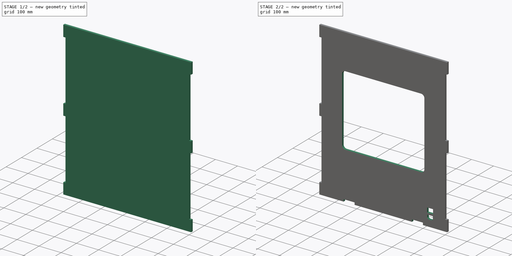
[diagram: build sequence overview — one tinted view per stage of 2, left to right]
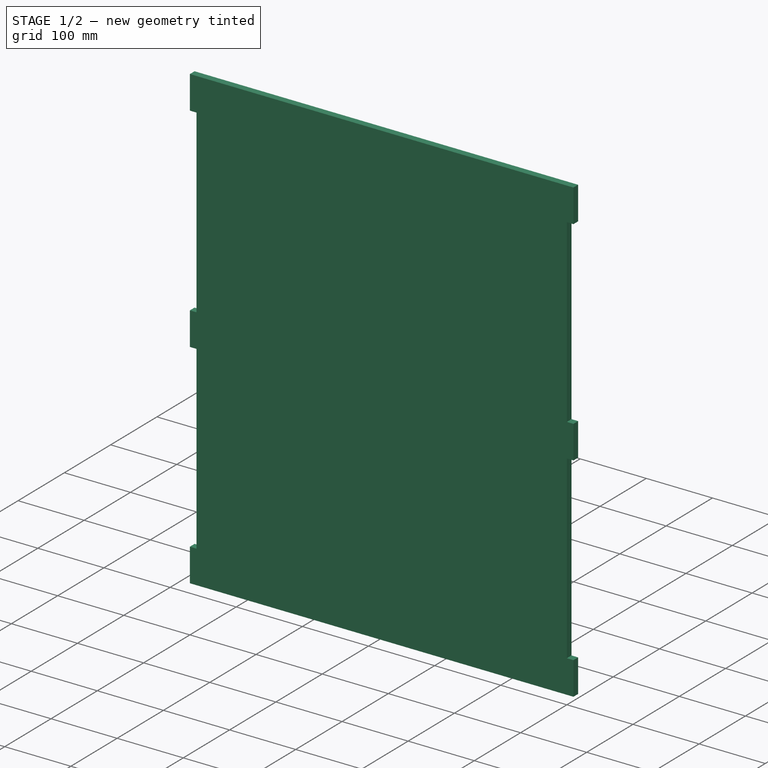
[diagram: stage 1 of 2 — iso view after this stage's code; geometry added in this stage tinted green]
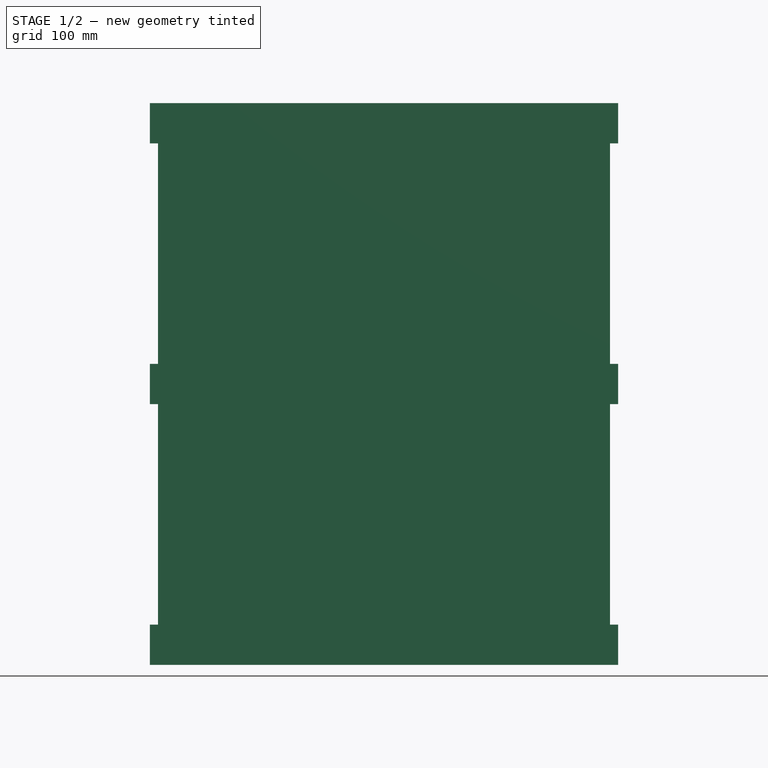
[diagram: stage 1 of 2 — front view after this stage's code; geometry added in this stage tinted green]
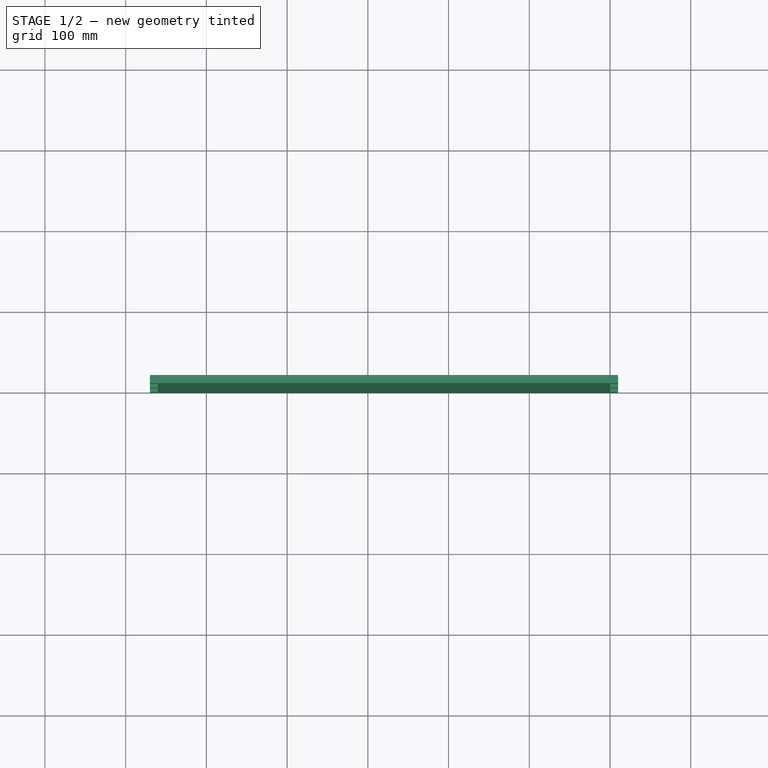
[diagram: stage 1 of 2 — top view after this stage's code; geometry added in this stage tinted green]
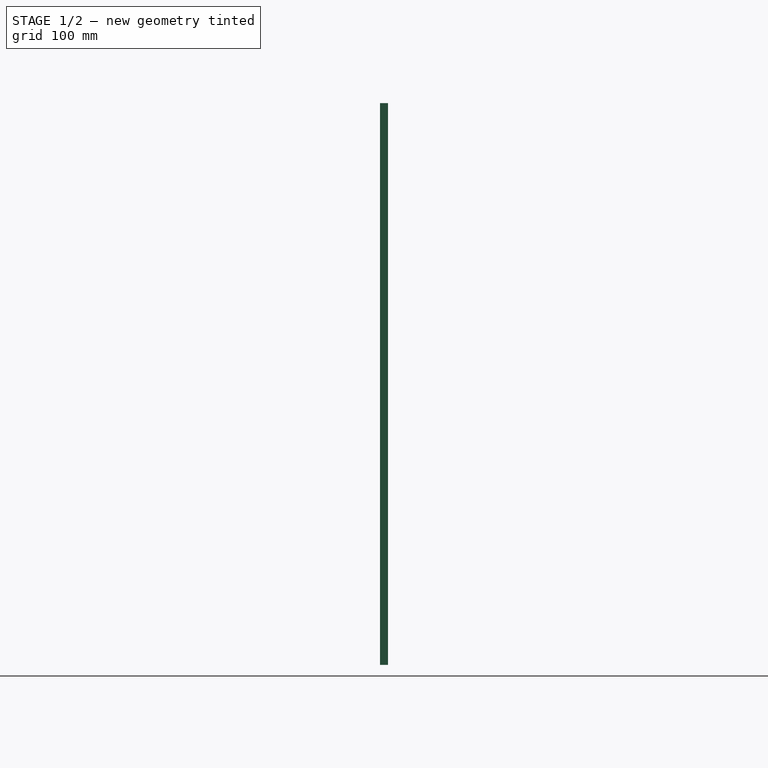
[diagram: stage 1 of 2 — right view after this stage's code; geometry added in this stage tinted green]
FCSTD DOCUMENT  (FreeCAD 0.16R6706 (Git))
Label: panneau_arriere
License: All rights reserved
LicenseURL: http://en.wikipedia.org/wiki/All_rights_reserved
objects: Sketcher::SketchObject×2, PartDesign::Pad×1, PartDesign::Pocket×1
note: 6 computed .brp shape members not serialized (recipe doc carries the construction recipe); baked Part::Feature solids carry a one-line shape summary decoded from their .brp

FEATURE [Sketcher::SketchObject] Sketch
  Placement = pos=(0,0,0) rot=(0,0.707107,0.707107;3.14159rad)
  sketch-geometry (24):
    g0: LineSegment StartX=0 StartY=0 StartZ=0 EndX=560 EndY=0 EndZ=0
    g1: LineSegment StartX=560 StartY=696 StartZ=0 EndX=0 EndY=696 EndZ=0
    g2: LineSegment StartX=560 StartY=696 StartZ=0 EndX=570 EndY=696 EndZ=0
    g3: LineSegment StartX=570 StartY=696 StartZ=0 EndX=570 EndY=646 EndZ=0
    g4: LineSegment StartX=570 StartY=646 StartZ=0 EndX=560 EndY=646 EndZ=0
    g5: LineSegment StartX=560 StartY=373 StartZ=0 EndX=570 EndY=373 EndZ=0
    g6: LineSegment StartX=570 StartY=373 StartZ=0 EndX=570 EndY=323 EndZ=0
    g7: LineSegment StartX=570 StartY=323 StartZ=0 EndX=560 EndY=323 EndZ=0
    g8: LineSegment StartX=560 StartY=50 StartZ=0 EndX=570 EndY=50 EndZ=0
    g9: LineSegment StartX=570 StartY=50 StartZ=0 EndX=570 EndY=0 EndZ=0
    g10: LineSegment StartX=570 StartY=0 StartZ=0 EndX=560 EndY=0 EndZ=0
    g11: LineSegment StartX=560 StartY=646 StartZ=0 EndX=560 EndY=373 EndZ=0
    g12: LineSegment StartX=560 StartY=323 StartZ=0 EndX=560 EndY=50 EndZ=0
    g13: LineSegment StartX=-10 StartY=696 StartZ=0 EndX=0 EndY=696 EndZ=0
    g14: LineSegment StartX=0 StartY=646 StartZ=0 EndX=-10 EndY=646 EndZ=0
    g15: LineSegment StartX=-10 StartY=646 StartZ=0 EndX=-10 EndY=696 EndZ=0
    g16: LineSegment StartX=-10 StartY=373 StartZ=0 EndX=0 EndY=373 EndZ=0
    g17: LineSegment StartX=0 StartY=323 StartZ=0 EndX=-10 EndY=323 EndZ=0
    g18: LineSegment StartX=-10 StartY=323 StartZ=0 EndX=-10 EndY=373 EndZ=0
    g19: LineSegment StartX=-10 StartY=50 StartZ=0 EndX=0 EndY=50 EndZ=0
    g20: LineSegment StartX=0 StartY=0 StartZ=0 EndX=-10 EndY=0 EndZ=0
    g21: LineSegment StartX=-10 StartY=0 StartZ=0 EndX=-10 EndY=50 EndZ=0
    g22: LineSegment StartX=0 StartY=646 StartZ=0 EndX=0 EndY=373 EndZ=0
    g23: LineSegment StartX=0 StartY=323 StartZ=0 EndX=0 EndY=50 EndZ=0
  constraints (71):
    c: Horizontal(g0)
    c: Horizontal(g1)
    c: Coincident(g0,g-1)
    c: Distance(g0) = 560
    c: Coincident(g2,g3)
    c: Coincident(g3,g4)
    c: Horizontal(g2)
    c: Horizontal(g4)
    c: Vertical(g3)
    c: DistanceX(g2,g2) = 10
    c: DistanceY(g3,g3) = 50
    c: Coincident(g1,g2)
    c: Coincident(g5,g6)
    c: Coincident(g6,g7)
    c: Horizontal(g5)
    c: Horizontal(g7)
    c: Vertical(g6)
    c: Coincident(g8,g9)
    c: Coincident(g9,g10)
    c: Horizontal(g8)
    c: Horizontal(g10)
    c: Vertical(g9)
    c: Coincident(g0,g10)
    c: Equal(g10,g8)
    c: Equal(g8,g7)
    c: Equal(g7,g5)
    c: Equal(g5,g4)
    c: Equal(g4,g2)
    c: Equal(g3,g6)
    c: Equal(g6,g9)
    c: Coincident(g11,g4)
    c: Coincident(g11,g5)
    c: Vertical(g11)
    c: Coincident(g12,g7)
    c: Coincident(g12,g8)
    c: Vertical(g12)
    c: Equal(g11,g12)
    c: Coincident(g14,g15)
    c: Coincident(g15,g13)
    c: Horizontal(g13)
    c: Horizontal(g14)
    c: Vertical(g15)
    c: Coincident(g17,g18)
    c: Coincident(g18,g16)
    c: Horizontal(g16)
    c: Horizontal(g17)
    c: Vertical(g18)
    c: Coincident(g20,g21)
    c: Coincident(g21,g19)
    c: Horizontal(g19)
    c: Horizontal(g20)
    c: Vertical(g21)
    c: DistanceY(g-1,g1) = 696
    c: Coincident(g1,g13)
    c: Coincident(g0,g20)
    c: Equal(g13,g14)
    c: Equal(g14,g16)
    c: Equal(g16,g17)
    c: Equal(g17,g19)
    c: Equal(g19,g20)
    c: Equal(g20,g10)
    c: Equal(g21,g18)
    c: Equal(g18,g15)
    c: Equal(g15,g9)
    c: Coincident(g22,g14)
    c: Coincident(g22,g16)
    c: Vertical(g22)
    c: Coincident(g23,g17)
    c: Coincident(g23,g19)
    c: Vertical(g23)
    c: Equal(g22,g23)
FEATURE [PartDesign::Pad] Pad
  Length = 10
  Length2 = 100
  Placement = pos=(0,0,0) rot=(0,0.707107,0.707107;3.14159rad)
  Sketch = -> Sketch
  Type = 0
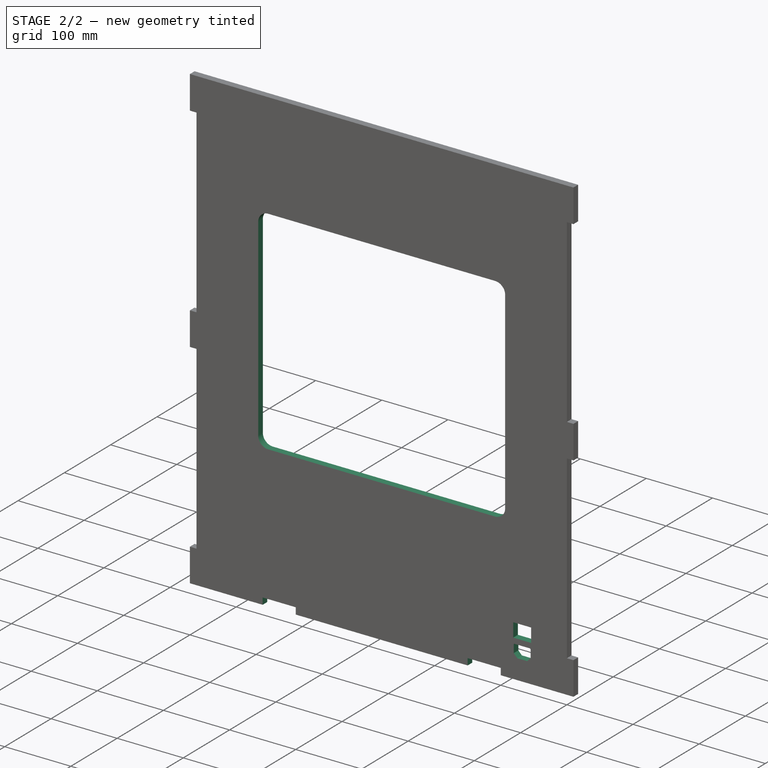
[diagram: stage 2 of 2 — iso view after this stage's code; geometry added in this stage tinted green]
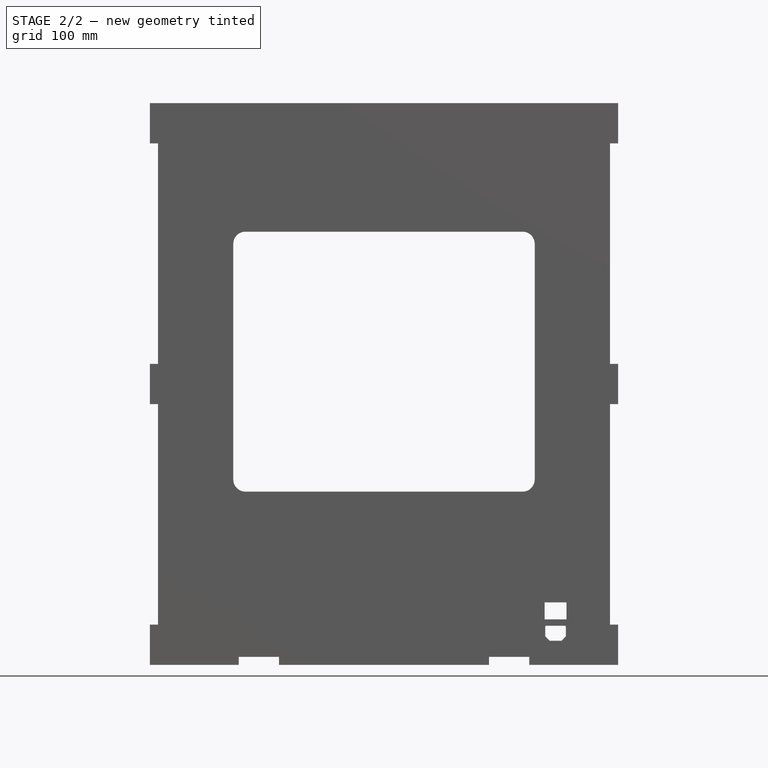
[diagram: stage 2 of 2 — front view after this stage's code; geometry added in this stage tinted green]
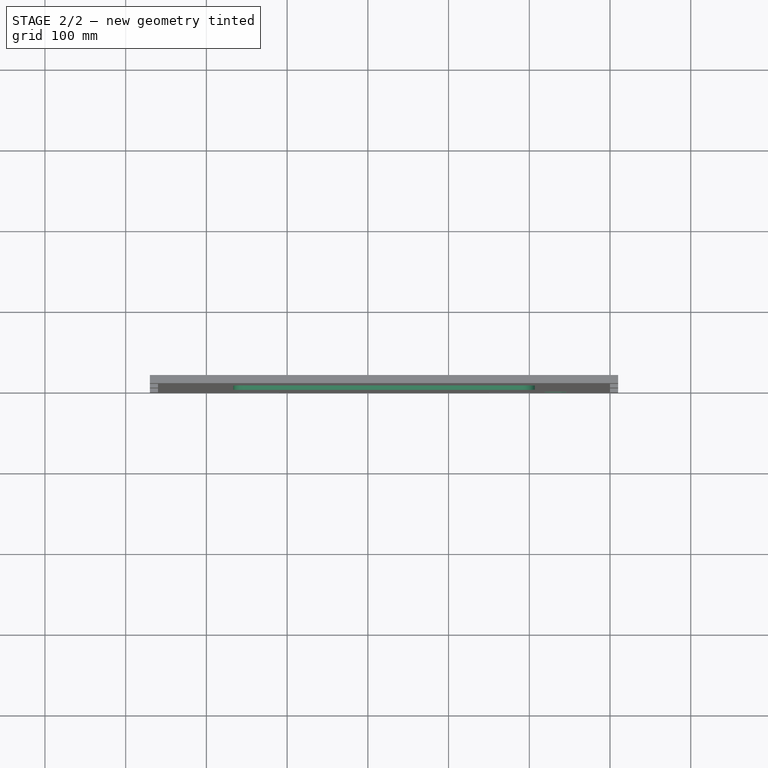
[diagram: stage 2 of 2 — top view after this stage's code; geometry added in this stage tinted green]
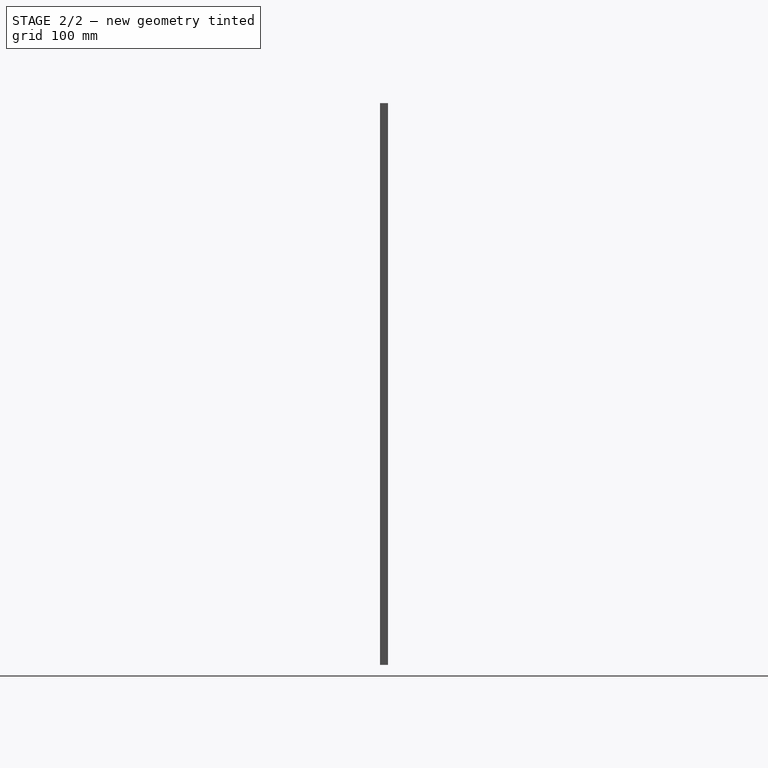
[diagram: stage 2 of 2 — right view after this stage's code; geometry added in this stage tinted green]
FEATURE [Sketcher::SketchObject] Sketch001
  Placement = pos=(0,10,0) rot=(0,0.707107,0.707107;3.14159rad)
  Support = -> Pad [Face26]
  sketch-geometry (31):
    g0: LineSegment StartX=108.335 StartY=536.67 StartZ=0 EndX=451.675 EndY=536.67 EndZ=0
    g1: LineSegment StartX=466.675 StartY=521.67 StartZ=0 EndX=466.675 EndY=229.67 EndZ=0
    g2: LineSegment StartX=451.675 StartY=214.67 StartZ=0 EndX=108.335 EndY=214.67 EndZ=0
    g3: LineSegment StartX=93.335 StartY=229.67 StartZ=0 EndX=93.335 EndY=521.67 EndZ=0
    g4: ArcOfCircle CenterX=108.335 CenterY=521.67 CenterZ=0 NormalX=0 NormalY=0 NormalZ=1 Radius=15 StartAngle=1.5708 EndAngle=3.14159
    g5: ArcOfCircle CenterX=108.335 CenterY=229.67 CenterZ=0 NormalX=0 NormalY=0 NormalZ=1 Radius=15 StartAngle=3.14159 EndAngle=4.71239
    g6: ArcOfCircle CenterX=451.675 CenterY=229.67 CenterZ=0 NormalX=0 NormalY=0 NormalZ=1 Radius=15 StartAngle=4.71239 EndAngle=6.28319
    g7: ArcOfCircle CenterX=451.675 CenterY=521.67 CenterZ=0 NormalX=0 NormalY=0 NormalZ=1 Radius=15 StartAngle=0 EndAngle=1.5708
    g8: LineSegment StartX=60 StartY=30 StartZ=0 EndX=75 EndY=30 EndZ=0
    g9: LineSegment StartX=78.8 StartY=48.5 StartZ=0 EndX=56.2 EndY=48.5 EndZ=0
    g10: LineSegment StartX=80.3 StartY=47 StartZ=0 EndX=80.3 EndY=35.5 EndZ=0
    g11: LineSegment StartX=80.3 StartY=35.5 StartZ=0 EndX=75 EndY=30 EndZ=0
    g12: LineSegment StartX=54.7 StartY=47 StartZ=0 EndX=54.7 EndY=35.5 EndZ=0
    g13: LineSegment StartX=54.7 StartY=35.5 StartZ=0 EndX=60 EndY=30 EndZ=0
    g14: ArcOfCircle CenterX=56.2 CenterY=47 CenterZ=0 NormalX=0 NormalY=0 NormalZ=1 Radius=1.5 StartAngle=1.5708 EndAngle=3.14159
    g15: ArcOfCircle CenterX=78.8 CenterY=47 CenterZ=0 NormalX=0 NormalY=0 NormalZ=1 Radius=1.5 StartAngle=0 EndAngle=1.5708
    g16: LineSegment StartX=54 StartY=77.5 StartZ=0 EndX=81 EndY=77.5 EndZ=0
    g17: LineSegment StartX=81 StartY=77.5 StartZ=0 EndX=81 EndY=56.5 EndZ=0
    g18: LineSegment StartX=81 StartY=56.5 StartZ=0 EndX=54 EndY=56.5 EndZ=0
    g19: LineSegment StartX=54 StartY=56.5 StartZ=0 EndX=54 EndY=77.5 EndZ=0
    g20: GeomPoint [constr] X=67.5 Y=48.5 Z=0
    g21: GeomPoint [constr] X=67.5 Y=56.5 Z=0
    g22: LineSegment [constr] StartX=67.5 StartY=56.5 StartZ=0 EndX=67.5 EndY=48.5 EndZ=0
    g23: LineSegment StartX=100 StartY=0 StartZ=0 EndX=150 EndY=0 EndZ=0
    g24: LineSegment StartX=150 StartY=0 StartZ=0 EndX=150 EndY=10 EndZ=0
    g25: LineSegment StartX=150 StartY=10 StartZ=0 EndX=100 EndY=10 EndZ=0
    g26: LineSegment StartX=100 StartY=10 StartZ=0 EndX=100 EndY=0 EndZ=0
    g27: LineSegment StartX=410 StartY=0 StartZ=0 EndX=460 EndY=0 EndZ=0
    g28: LineSegment StartX=460 StartY=0 StartZ=0 EndX=460 EndY=10 EndZ=0
    g29: LineSegment StartX=460 StartY=10 StartZ=0 EndX=410 EndY=10 EndZ=0
    g30: LineSegment StartX=410 StartY=10 StartZ=0 EndX=410 EndY=0 EndZ=0
  constraints (88):
    c: Horizontal(g0)
    c: Horizontal(g2)
    c: Vertical(g1)
    c: Vertical(g3)
    c: Tangent(g0,g4) = 1.5708
    c: Tangent(g3,g4) = 1.5708
    c: Tangent(g2,g5) = 1.5708
    c: Tangent(g3,g5) = 1.5708
    c: Tangent(g1,g6) = 1.5708
    c: Tangent(g2,g6) = 1.5708
    c: Tangent(g0,g7) = 1.5708
    c: Tangent(g1,g7) = 1.5708
    c: Equal(g5,g6)
    c: Equal(g6,g7)
    c: Equal(g7,g4)
    c: DistanceY(g2,g0) = 322
    c: DistanceX(g3,g1) = 373.34
    c: DistanceY(g-1,g2) = 214.67
    c: Radius(g4) = 15
    c: Horizontal(g8)
    c: Horizontal(g9)
    c: DistanceX(g8,g8) = 15
    c: Vertical(g10)
    c: Coincident(g10,g11)
    c: Coincident(g11,g8)
    c: Vertical(g12)
    c: Coincident(g12,g13)
    c: Coincident(g13,g8)
    c: Equal(g12,g10)
    c: Equal(g13,g11)
    c: Tangent(g9,g14) = -1.5708
    c: Tangent(g12,g14) = -1.5708
    c: Tangent(g9,g15) = -1.5708
    c: Tangent(g10,g15) = 1.5708
    c: DistanceY(g12,g9) = 13
    c: DistanceX(g12,g10) = 25.6
    c: Radius(g14) = 1.5
    c: Equal(g14,g15)
    c: DistanceY(g8,g9) = 18.5
    c: Coincident(g16,g17)
    c: Coincident(g17,g18)
    c: Coincident(g18,g19)
    c: Coincident(g19,g16)
    c: Horizontal(g16)
    c: Horizontal(g18)
    c: Vertical(g17)
    c: Vertical(g19)
    c: DistanceY(g17,g17) = 21
    c: PointOnObject(g20,g9)
    c: PointOnObject(g21,g18)
    c: DistanceX(g16,g16) = 27
    c: Coincident(g22,g21)
    c: Coincident(g22,g20)
    c: Vertical(g22)
    c: DistanceY(g22,g22) = 8
    c: Symmetric(g9,g9,g20)
    c: Symmetric(g18,g18,g21)
    c: DistanceY(g-1,g8) = 30
    c: DistanceX(g-1,g8) = 60
    c: Coincident(g23,g24)
    c: Coincident(g24,g25)
    c: Coincident(g25,g26)
    c: Coincident(g26,g23)
    c: Horizontal(g23)
    c: Horizontal(g25)
    c: Vertical(g24)
    c: Vertical(g26)
    c: Coincident(g27,g28)
    c: Coincident(g28,g29)
    c: Coincident(g29,g30)
    c: Coincident(g30,g27)
    c: Horizontal(g27)
    c: Horizontal(g29)
    c: Vertical(g28)
    c: Vertical(g30)
    c: Equal(g23,g27)
    c: Equal(g27,g29)
    c: Equal(g29,g25)
    c: Equal(g24,g26)
    c: Equal(g26,g30)
    c: Equal(g30,g28)
    c: Distance(g27) = 50
    c: Distance(g28) = 10
    c: PointOnObject(g23,g-1)
    c: PointOnObject(g27,g-1)
    c: DistanceX(g-1,g23) = 100
    c: DistanceX(g23,g27) = 260
    c: DistanceX(g-1,g3) = 93.335
FEATURE [PartDesign::Pocket] Pocket
  Length = 5
  Placement = pos=(0,0,0) rot=(0,0.707107,0.707107;3.14159rad)
  Sketch = -> Sketch001
  Type = 1
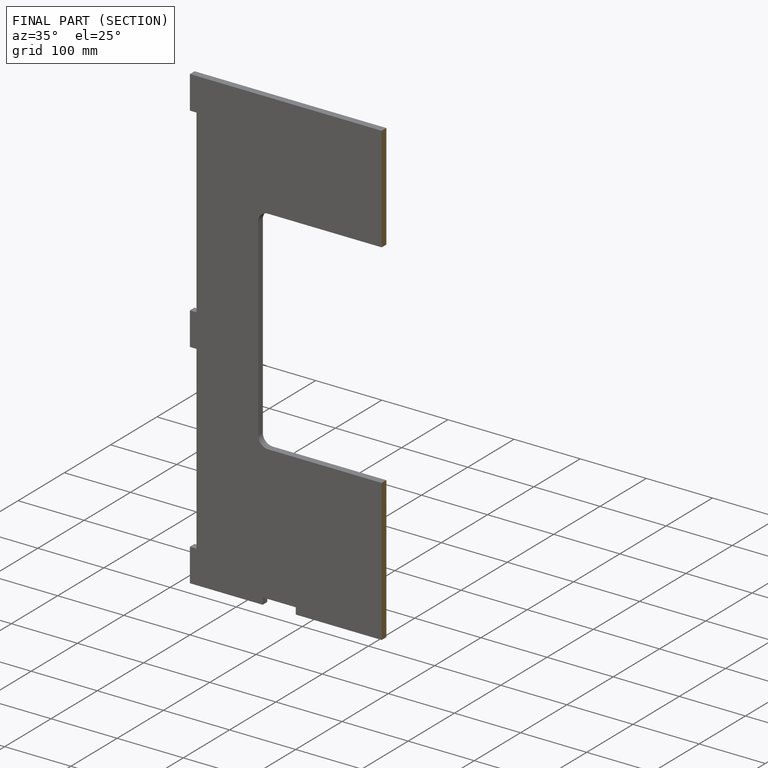
[diagram: finished part — half-section view (interior)]
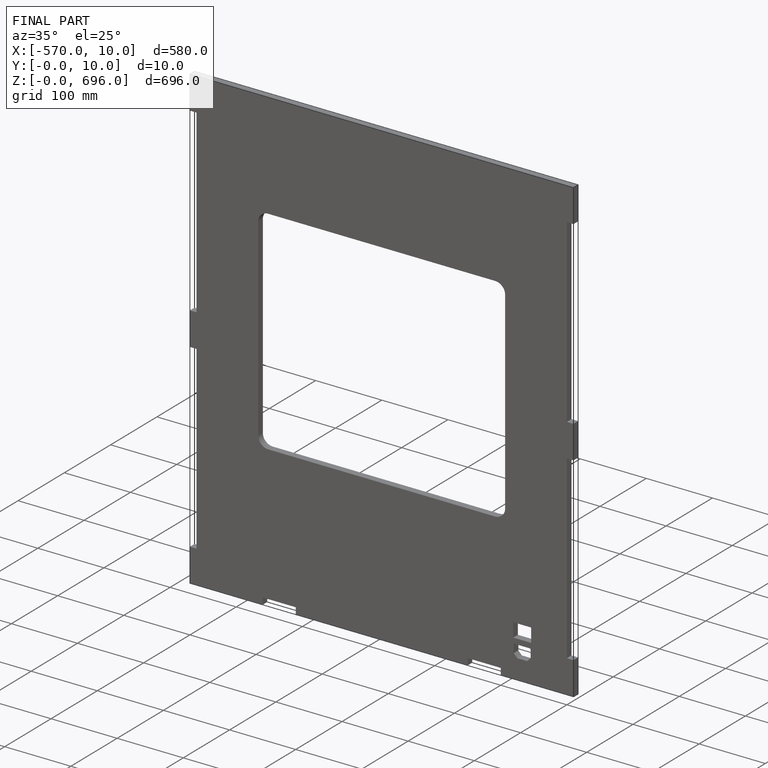
[diagram: finished part — iso view with bounding-box wireframe]
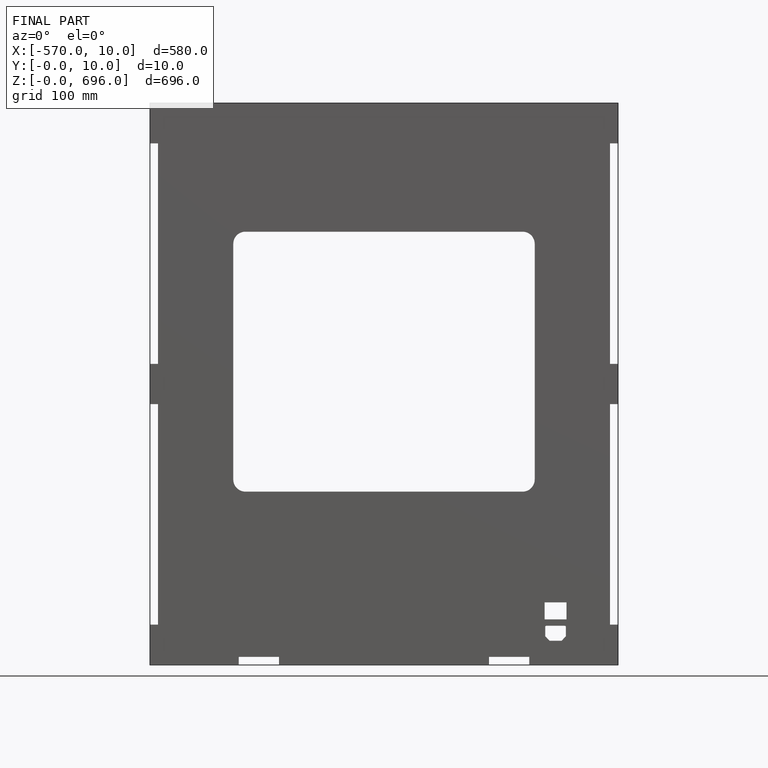
[diagram: finished part — front view with bounding-box wireframe]
